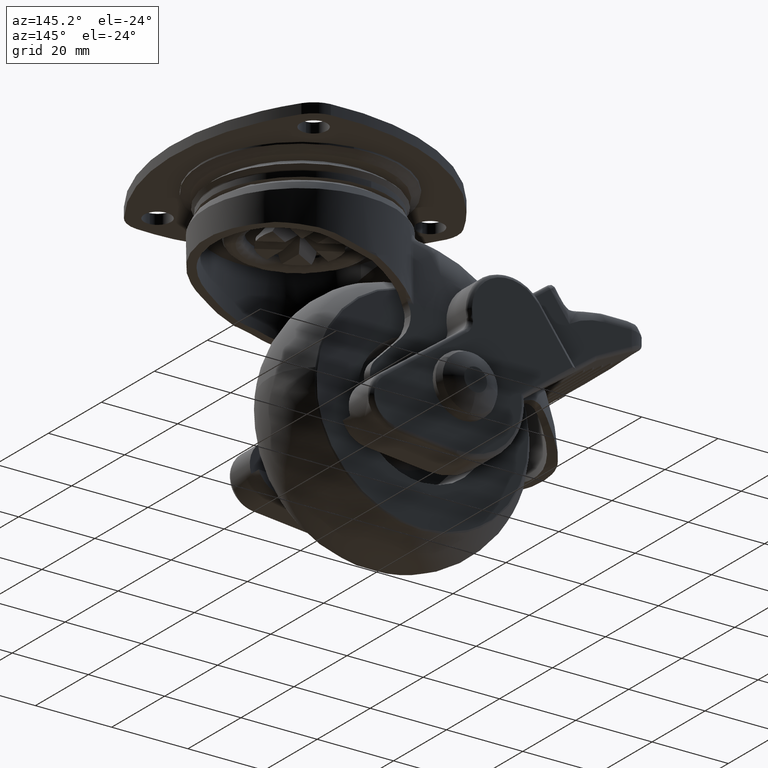
[diagram: clean part render]
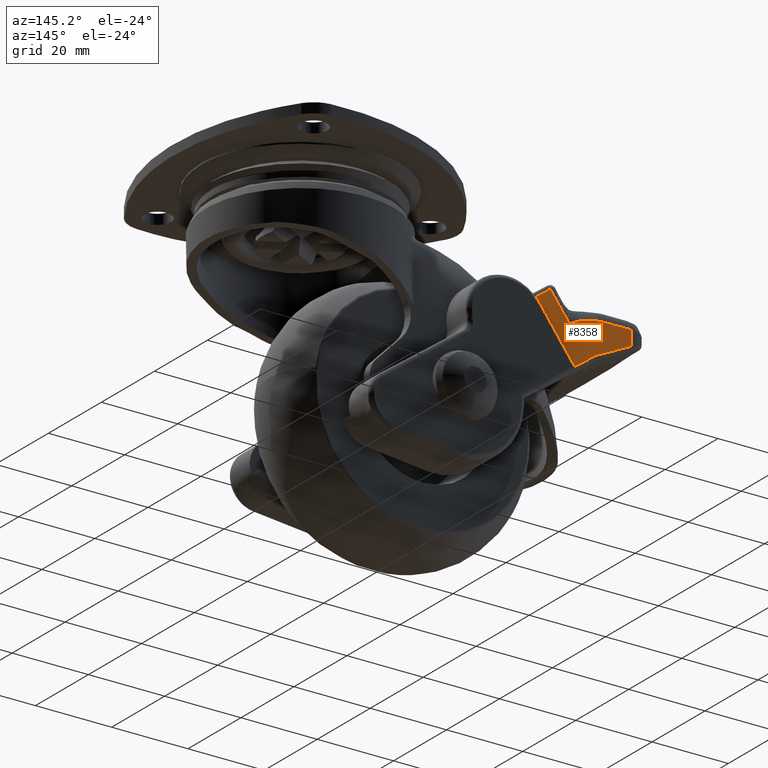
[diagram: same view with one face highlighted and labeled with its STEP entity id]
A machine part, auxiliary view. The second image highlights one B-rep face of the part: STEP entity #8358.
In plain terms, the highlighted face is a freeform B-spline surface patch.
Its self-contained STEP definition (entity closure, byte-faithful):
#2436=CARTESIAN_POINT('',(-55.981336895218497,23.0,-38.163849896012202));
#2437=VERTEX_POINT('',#2436);
#2537=CARTESIAN_POINT('',(-61.472529545594703,23.0,-34.174264871168262));
#2538=VERTEX_POINT('',#2537);
#2552=CARTESIAN_POINT('',(-55.981336895218497,23.0,-38.163849896012202));
#2553=CARTESIAN_POINT('',(-61.472529545594703,23.0,-34.174264871168262));
#2554=QUASI_UNIFORM_CURVE('',1,(#2552,#2553),.UNSPECIFIED.,.F.,.U.);
#2555=EDGE_CURVE('',#2437,#2538,#2554,.T.);
#2582=CARTESIAN_POINT('',(-70.904147999999907,23.0,-29.574156733902949));
#2583=VERTEX_POINT('',#2582);
#2597=CARTESIAN_POINT('',(-61.472529545594703,23.0,-34.174264871168262));
#2598=CARTESIAN_POINT('',(-70.904147999999907,23.0,-29.574156733902949));
#2599=QUASI_UNIFORM_CURVE('',1,(#2597,#2598),.UNSPECIFIED.,.F.,.U.);
#2600=EDGE_CURVE('',#2538,#2583,#2599,.T.);
#2969=CARTESIAN_POINT('',(-45.789851731317199,23.0,-24.308028942397652));
#2970=VERTEX_POINT('',#2969);
#3019=CARTESIAN_POINT('',(-49.554840940011502,23.0,-21.572604283360150));
#3020=VERTEX_POINT('',#3019);
#3042=CARTESIAN_POINT('',(-49.554840940011502,23.0,-21.572604283360150));
#3043=CARTESIAN_POINT('',(-45.789851731317199,23.0,-24.308028942397652));
#3044=QUASI_UNIFORM_CURVE('',1,(#3042,#3043),.UNSPECIFIED.,.F.,.U.);
#3045=EDGE_CURVE('',#3020,#2970,#3044,.T.);
#5272=CARTESIAN_POINT('',(-46.841276017810699,23.0,-25.583635690145449));
#5273=VERTEX_POINT('',#5272);
#5274=CARTESIAN_POINT('',(-45.789851731317178,23.0,-24.308028942397669));
#5275=CARTESIAN_POINT('',(-46.354541581043705,23.0,-24.913704775948148));
#5276=CARTESIAN_POINT('',(-46.841276017810699,23.0,-25.583635690145449));
#5284=(BOUNDED_CURVE()B_SPLINE_CURVE(2,(#5274,#5275,#5276),.UNSPECIFIED.,.F.,.U.)CURVE()GEOMETRIC_REPRESENTATION_ITEM()QUASI_UNIFORM_CURVE()RATIONAL_B_SPLINE_CURVE((1.0,0.998137816646748,1.0))REPRESENTATION_ITEM(''));
#5285=EDGE_CURVE('',#2970,#5273,#5284,.T.);
#5322=CARTESIAN_POINT('',(-46.841276017810699,23.0,-25.583635690145449));
#5323=CARTESIAN_POINT('',(-55.981336895218497,23.0,-38.163849896012202));
#5324=QUASI_UNIFORM_CURVE('',1,(#5322,#5323),.UNSPECIFIED.,.F.,.U.);
#5325=EDGE_CURVE('',#5273,#2437,#5324,.T.);
#6019=CARTESIAN_POINT('',(-54.572485320602503,23.0,-28.478800588928600));
#6020=VERTEX_POINT('',#6019);
#6131=CARTESIAN_POINT('',(-70.904147999999907,23.0,-25.762756399277698));
#6132=VERTEX_POINT('',#6131);
#6287=CARTESIAN_POINT('',(-63.891413741312491,23.0,-25.762756399278249));
#6288=VERTEX_POINT('',#6287);
#6302=CARTESIAN_POINT('',(-70.904147999999907,23.0,-25.762756399277698));
#6303=CARTESIAN_POINT('',(-63.891413741312491,23.0,-25.762756399278249));
#6304=QUASI_UNIFORM_CURVE('',1,(#6302,#6303),.UNSPECIFIED.,.F.,.U.);
#6305=EDGE_CURVE('',#6132,#6288,#6304,.T.);
#6491=CARTESIAN_POINT('',(-63.891413741312491,23.0,-25.762756399278249));
#6492=CARTESIAN_POINT('',(-63.065425029084231,23.000000000000011,-25.762756399278249));
#6493=CARTESIAN_POINT('',(-62.249444403368067,23.0,-25.821517041403268));
#6494=CARTESIAN_POINT('',(-60.636649661721833,23.0,-26.051570968227459));
#6495=CARTESIAN_POINT('',(-59.839837909333603,23.0,-26.222878130028860));
#6496=CARTESIAN_POINT('',(-58.856023274547319,23.0,-26.508642468964901));
#6497=CARTESIAN_POINT('',(-58.659873272861773,23.0,-26.569394014930701));
#6498=CARTESIAN_POINT('',(-58.268816685253967,23.0,-26.698197594182108));
#6499=CARTESIAN_POINT('',(-58.073633005381353,23.0,-26.766360528118451));
#6500=CARTESIAN_POINT('',(-57.493556839026994,23.000000000000011,-26.980629547155079));
#6501=CARTESIAN_POINT('',(-57.113282558967363,23.000000000000011,-27.136737536717948));
#6502=CARTESIAN_POINT('',(-55.991545037153273,23.0,-27.644344851881819));
#6503=CARTESIAN_POINT('',(-55.269066670794800,23.0,-28.034920782007319));
#6504=CARTESIAN_POINT('',(-54.572485320602503,23.0,-28.478800588928600));
#6505=B_SPLINE_CURVE_WITH_KNOTS('',3,(#6491,#6492,#6493,#6494,#6495,#6496,#6497,#6498,#6499,#6500,#6501,#6502,#6503,#6504),.UNSPECIFIED.,.F.,.U.,(4,2,2,2,2,2,4),(0.0,0.249999999999999,0.499999999999998,0.562499999999998,0.624999999999998,0.749999999999998,1.0),.UNSPECIFIED.);
#6506=EDGE_CURVE('',#6288,#6020,#6505,.T.);
#6577=CARTESIAN_POINT('',(-54.572485320602503,23.0,-28.478800588928600));
#6578=CARTESIAN_POINT('',(-49.554840940011502,23.0,-21.572604283360150));
#6579=QUASI_UNIFORM_CURVE('',1,(#6577,#6578),.UNSPECIFIED.,.F.,.U.);
#6580=EDGE_CURVE('',#6020,#3020,#6579,.T.);
#6927=CARTESIAN_POINT('',(-70.904147999999907,23.0,-29.574156733902949));
#6928=CARTESIAN_POINT('',(-70.904147999999907,23.0,-25.762756399277698));
#6929=QUASI_UNIFORM_CURVE('',1,(#6927,#6928),.UNSPECIFIED.,.F.,.U.);
#6930=EDGE_CURVE('',#2583,#6132,#6929,.T.);
#8342=CARTESIAN_POINT('',(-72.158603188137604,23.0,-20.743872435174531));
#8343=CARTESIAN_POINT('',(-72.158603188137604,23.0,-38.992581744197821));
#8344=CARTESIAN_POINT('',(-44.535394073247133,23.0,-20.743872435174531));
#8345=CARTESIAN_POINT('',(-44.535394073247133,23.0,-38.992581744197821));
#8346=B_SPLINE_SURFACE_WITH_KNOTS('',1,1,((#8342,#8344),(#8343,#8345)),.UNSPECIFIED.,.F.,.F.,.U.,(2,2),(2,2),(0.0,18.248709309023290),(0.0,27.623209114890479),.UNSPECIFIED.);
#8347=ORIENTED_EDGE('',*,*,#5325,.T.);
#8348=ORIENTED_EDGE('',*,*,#2555,.T.);
#8349=ORIENTED_EDGE('',*,*,#2600,.T.);
#8350=ORIENTED_EDGE('',*,*,#6930,.T.);
#8351=ORIENTED_EDGE('',*,*,#6305,.T.);
#8352=ORIENTED_EDGE('',*,*,#6506,.T.);
#8353=ORIENTED_EDGE('',*,*,#6580,.T.);
#8354=ORIENTED_EDGE('',*,*,#3045,.T.);
#8355=ORIENTED_EDGE('',*,*,#5285,.T.);
#8356=EDGE_LOOP('',(#8347,#8348,#8349,#8350,#8351,#8352,#8353,#8354,#8355));
#8357=FACE_OUTER_BOUND('',#8356,.T.);
#8358=ADVANCED_FACE('',(#8357),#8346,.F.);